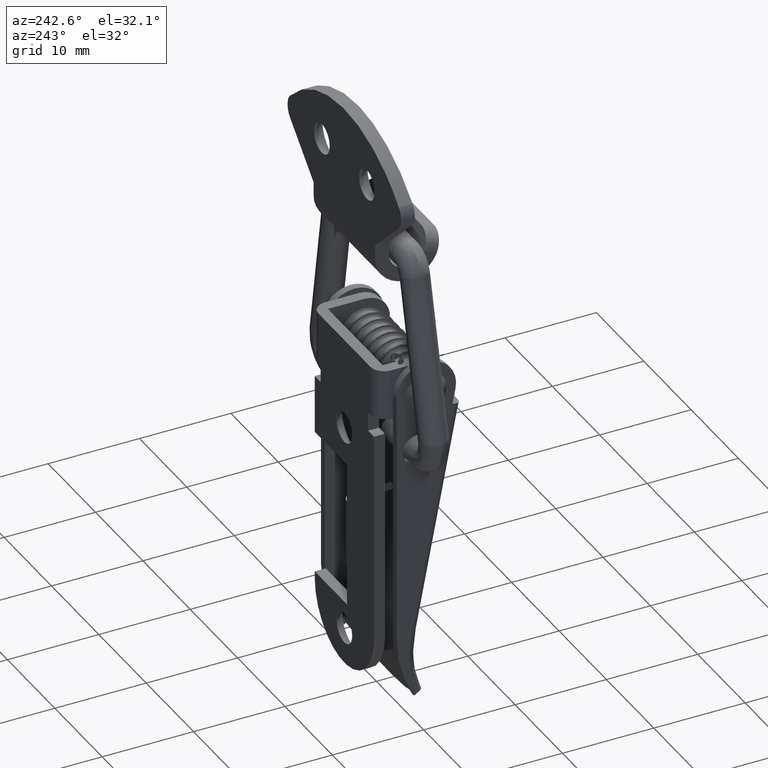
[diagram: clean part render]
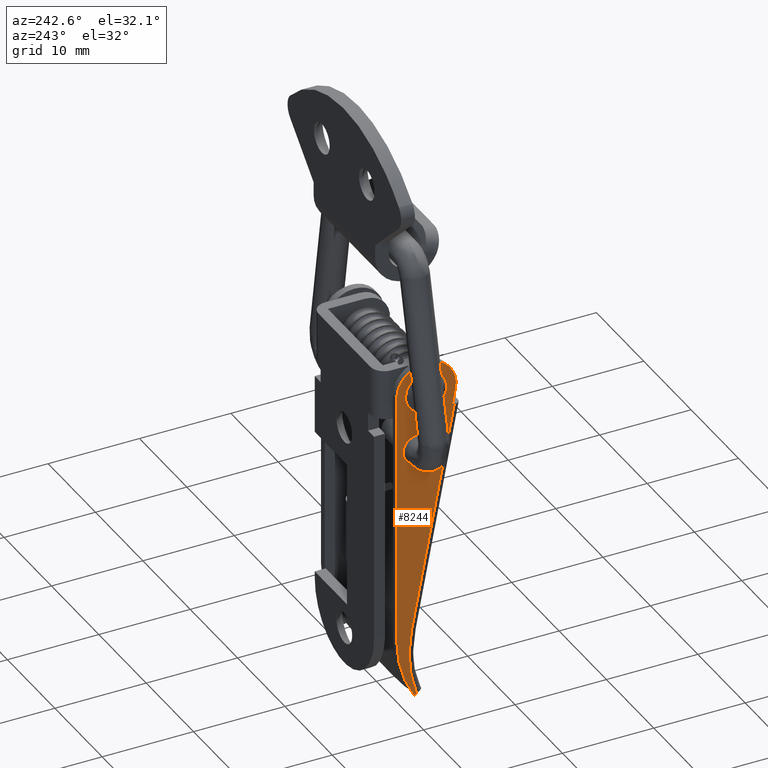
[diagram: same view with one face highlighted and labeled with its STEP entity id]
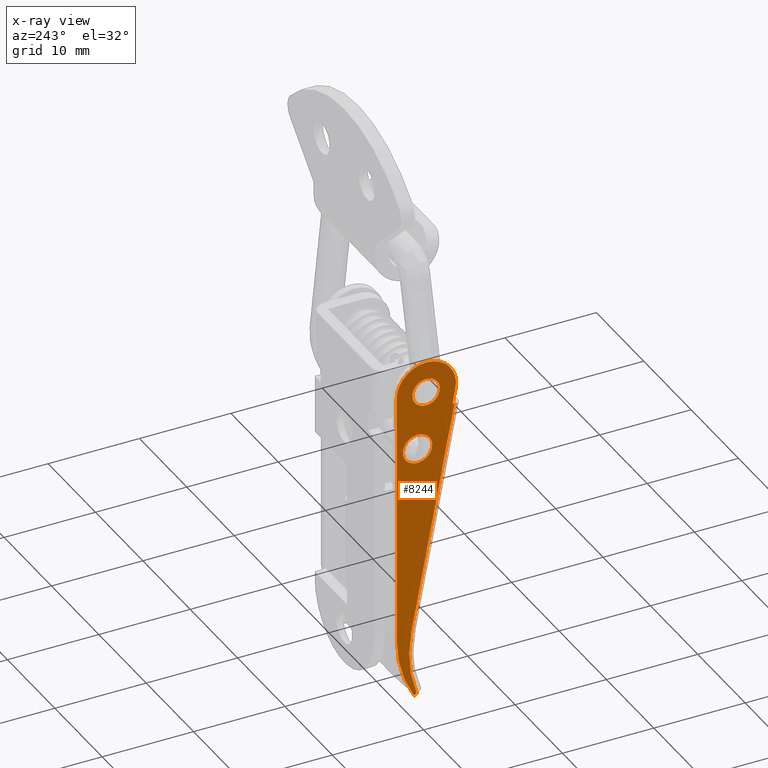
[diagram: x-ray of the same camera — body ghosted, the highlighted face saturated]
A machine part, auxiliary view. The second image highlights one B-rep face of the part: STEP entity #8244.
The next image is the same camera in x-ray: the body ghosted, the highlighted face saturated — about 0% of this face is hidden behind the body in this view.
In plain terms, the highlighted face is a freeform B-spline surface patch.
Its self-contained STEP definition (entity closure, byte-faithful):
#6886=CARTESIAN_POINT('',(-8.000000000000146,0.197202197609388,-15.492572809684891));
#6887=VERTEX_POINT('',#6886);
#6893=CARTESIAN_POINT('',(-8.000000000000119,-1.300000000000011,-16.901000000000000));
#6894=VERTEX_POINT('',#6893);
#6895=CARTESIAN_POINT('',(-8.000000000000119,-1.300000000000011,-16.901000000000000));
#6896=CARTESIAN_POINT('',(-8.000000000000119,0.111059099997269,-16.901000000000007));
#6897=CARTESIAN_POINT('',(-8.000000000000119,0.197202197609388,-15.492572809684884));
#6905=(BOUNDED_CURVE()B_SPLINE_CURVE(2,(#6895,#6896,#6897),.UNSPECIFIED.,.F.,.U.)B_SPLINE_CURVE_WITH_KNOTS((3,3),(0.500000000000000,0.739332962197875),.UNSPECIFIED.)CURVE()GEOMETRIC_REPRESENTATION_ITEM()RATIONAL_B_SPLINE_CURVE((1.0,0.719603993334824,0.976072041578701))REPRESENTATION_ITEM(''));
#6906=EDGE_CURVE('',#6894,#6887,#6905,.T.);
#6908=CARTESIAN_POINT('',(-8.000000000000146,-2.797202197609411,-15.309427190315111));
#6909=VERTEX_POINT('',#6908);
#6910=CARTESIAN_POINT('',(-8.000000000000119,-2.797202197609412,-15.309427190315114));
#6911=CARTESIAN_POINT('',(-8.000000000000119,-2.800000000000011,-15.355170854860276));
#6912=CARTESIAN_POINT('',(-8.000000000000119,-2.800000000000011,-15.401000000000000));
#6913=CARTESIAN_POINT('',(-8.000000000000119,-2.800000000000011,-16.901000000000000));
#6914=CARTESIAN_POINT('',(-8.000000000000119,-1.300000000000011,-16.901000000000000));
#6922=(BOUNDED_CURVE()B_SPLINE_CURVE(2,(#6910,#6911,#6912,#6913,#6914),.UNSPECIFIED.,.F.,.U.)B_SPLINE_CURVE_WITH_KNOTS((3,2,3),(0.239332962197875,0.250000000000000,0.500000000000000),.UNSPECIFIED.)CURVE()GEOMETRIC_REPRESENTATION_ITEM()RATIONAL_B_SPLINE_CURVE((0.976072041578701,0.987502787851723,1.0,0.707106781186548,1.0))REPRESENTATION_ITEM(''));
#6923=EDGE_CURVE('',#6909,#6894,#6922,.T.);
#6967=CARTESIAN_POINT('',(-8.000000000000119,-1.300000000000011,-13.901000000000000));
#6968=VERTEX_POINT('',#6967);
#6969=CARTESIAN_POINT('',(-8.000000000000119,-1.300000000000011,-13.901000000000000));
#6970=CARTESIAN_POINT('',(-8.000000000000119,-2.711059099997292,-13.900999999999998));
#6971=CARTESIAN_POINT('',(-8.000000000000119,-2.797202197609411,-15.309427190315109));
#6979=(BOUNDED_CURVE()B_SPLINE_CURVE(2,(#6969,#6970,#6971),.UNSPECIFIED.,.F.,.U.)B_SPLINE_CURVE_WITH_KNOTS((3,3),(0.0,0.239332962197875),.UNSPECIFIED.)CURVE()GEOMETRIC_REPRESENTATION_ITEM()RATIONAL_B_SPLINE_CURVE((1.0,0.719603993334824,0.976072041578701))REPRESENTATION_ITEM(''));
#6980=EDGE_CURVE('',#6968,#6909,#6979,.T.);
#6982=CARTESIAN_POINT('',(-8.000000000000119,0.197202197609388,-15.492572809684889));
#6983=CARTESIAN_POINT('',(-8.000000000000119,0.199999999999989,-15.446829145139723));
#6984=CARTESIAN_POINT('',(-8.000000000000119,0.199999999999989,-15.401000000000000));
#6985=CARTESIAN_POINT('',(-8.000000000000119,0.199999999999989,-13.900999999999996));
#6986=CARTESIAN_POINT('',(-8.000000000000119,-1.300000000000011,-13.901000000000000));
#6994=(BOUNDED_CURVE()B_SPLINE_CURVE(2,(#6982,#6983,#6984,#6985,#6986),.UNSPECIFIED.,.F.,.U.)B_SPLINE_CURVE_WITH_KNOTS((3,2,3),(0.739332962197875,0.750000000000000,1.0),.UNSPECIFIED.)CURVE()GEOMETRIC_REPRESENTATION_ITEM()RATIONAL_B_SPLINE_CURVE((0.976072041578702,0.987502787851723,1.0,0.707106781186548,1.0))REPRESENTATION_ITEM(''));
#6995=EDGE_CURVE('',#6887,#6968,#6994,.T.);
#7250=CARTESIAN_POINT('',(-8.000000000000119,1.229015677452927,-21.733677663616529));
#7251=VERTEX_POINT('',#7250);
#7257=CARTESIAN_POINT('',(-8.000000000000119,-0.367999999999995,-23.236000000000001));
#7258=VERTEX_POINT('',#7257);
#7259=CARTESIAN_POINT('',(-8.000000000000119,-0.367999999999995,-23.236000000000001));
#7260=CARTESIAN_POINT('',(-8.000000000000119,1.137129706708475,-23.236000000000004));
#7261=CARTESIAN_POINT('',(-8.000000000000119,1.229015677452927,-21.733677663616529));
#7269=(BOUNDED_CURVE()B_SPLINE_CURVE(2,(#7259,#7260,#7261),.UNSPECIFIED.,.F.,.U.)B_SPLINE_CURVE_WITH_KNOTS((3,3),(0.500000000000000,0.739332962202990),.UNSPECIFIED.)CURVE()GEOMETRIC_REPRESENTATION_ITEM()RATIONAL_B_SPLINE_CURVE((1.0,0.719603993328831,0.976072041589664))REPRESENTATION_ITEM(''));
#7270=EDGE_CURVE('',#7258,#7251,#7269,.T.);
#7272=CARTESIAN_POINT('',(-8.000000000000119,-1.965015677452916,-21.538322336383469));
#7273=VERTEX_POINT('',#7272);
#7274=CARTESIAN_POINT('',(-8.000000000000119,-1.965015677452916,-21.538322336383469));
#7275=CARTESIAN_POINT('',(-8.000000000000119,-1.967999999999995,-21.587115578541372));
#7276=CARTESIAN_POINT('',(-8.000000000000119,-1.967999999999994,-21.635999999999999));
#7277=CARTESIAN_POINT('',(-8.000000000000119,-1.967999999999995,-23.236000000000001));
#7278=CARTESIAN_POINT('',(-8.000000000000119,-0.367999999999995,-23.236000000000001));
#7286=(BOUNDED_CURVE()B_SPLINE_CURVE(2,(#7274,#7275,#7276,#7277,#7278),.UNSPECIFIED.,.F.,.U.)B_SPLINE_CURVE_WITH_KNOTS((3,2,3),(0.239332962202991,0.250000000000000,0.500000000000000),.UNSPECIFIED.)CURVE()GEOMETRIC_REPRESENTATION_ITEM()RATIONAL_B_SPLINE_CURVE((0.976072041589665,0.987502787857717,1.0,0.707106781186548,1.0))REPRESENTATION_ITEM(''));
#7287=EDGE_CURVE('',#7273,#7258,#7286,.T.);
#7331=CARTESIAN_POINT('',(-8.000000000000119,-0.367999999999995,-20.036000000000001));
#7332=VERTEX_POINT('',#7331);
#7333=CARTESIAN_POINT('',(-8.000000000000119,-0.367999999999995,-20.036000000000001));
#7334=CARTESIAN_POINT('',(-8.000000000000119,-1.873129706708463,-20.035999999999991));
#7335=CARTESIAN_POINT('',(-8.000000000000121,-1.965015677452916,-21.538322336383469));
#7343=(BOUNDED_CURVE()B_SPLINE_CURVE(2,(#7333,#7334,#7335),.UNSPECIFIED.,.F.,.U.)B_SPLINE_CURVE_WITH_KNOTS((3,3),(0.0,0.239332962202990),.UNSPECIFIED.)CURVE()GEOMETRIC_REPRESENTATION_ITEM()RATIONAL_B_SPLINE_CURVE((1.0,0.719603993328831,0.976072041589664))REPRESENTATION_ITEM(''));
#7344=EDGE_CURVE('',#7332,#7273,#7343,.T.);
#7346=CARTESIAN_POINT('',(-8.000000000000119,1.229015677452927,-21.733677663616529));
#7347=CARTESIAN_POINT('',(-8.000000000000119,1.232000000000006,-21.684884421458623));
#7348=CARTESIAN_POINT('',(-8.000000000000119,1.232000000000006,-21.635999999999999));
#7349=CARTESIAN_POINT('',(-8.000000000000119,1.232000000000005,-20.036000000000005));
#7350=CARTESIAN_POINT('',(-8.000000000000119,-0.367999999999995,-20.036000000000001));
#7358=(BOUNDED_CURVE()B_SPLINE_CURVE(2,(#7346,#7347,#7348,#7349,#7350),.UNSPECIFIED.,.F.,.U.)B_SPLINE_CURVE_WITH_KNOTS((3,2,3),(0.739332962202990,0.750000000000000,1.0),.UNSPECIFIED.)CURVE()GEOMETRIC_REPRESENTATION_ITEM()RATIONAL_B_SPLINE_CURVE((0.976072041589664,0.987502787857716,1.0,0.707106781186548,1.0))REPRESENTATION_ITEM(''));
#7359=EDGE_CURVE('',#7251,#7332,#7358,.T.);
#7706=CARTESIAN_POINT('',(-8.000000000000119,-4.193000000000098,-17.579999999999998));
#7707=VERTEX_POINT('',#7706);
#7722=CARTESIAN_POINT('',(-8.000000000000119,-4.520999999999999,-15.861000000000001));
#7723=VERTEX_POINT('',#7722);
#7729=CARTESIAN_POINT('',(-8.000000000000119,-4.520999999999999,-15.861000000000001));
#7730=CARTESIAN_POINT('',(-8.000000000000119,-4.193000000000098,-17.579999999999998));
#7731=QUASI_UNIFORM_CURVE('',1,(#7729,#7730),.UNSPECIFIED.,.F.,.U.);
#7732=EDGE_CURVE('',#7723,#7707,#7731,.T.);
#7781=CARTESIAN_POINT('',(-8.000000000000119,1.921999588120811,-15.254636219585500));
#7782=VERTEX_POINT('',#7781);
#7788=CARTESIAN_POINT('',(-8.000000000000119,1.921999588120811,-15.254636219585500));
#7789=CARTESIAN_POINT('',(-8.000000000000101,1.922149181566138,-15.085470989578310));
#7790=CARTESIAN_POINT('',(-8.000000000000162,1.889463436926203,-14.662512297647700));
#7791=CARTESIAN_POINT('',(-8.000000000000066,1.732921755220227,-14.102012551390439));
#7792=CARTESIAN_POINT('',(-8.000000000000163,1.431078996856606,-13.494414561560241));
#7793=CARTESIAN_POINT('',(-8.000000000000167,1.075763313562508,-13.032965832023701));
#7794=CARTESIAN_POINT('',(-8.000000000000078,0.597311039356358,-12.613926158113539));
#7795=CARTESIAN_POINT('',(-8.000000000000107,0.054034960717628,-12.280561973889350));
#7796=CARTESIAN_POINT('',(-8.000000000000117,-0.564344641860191,-12.069432923768909));
#7797=CARTESIAN_POINT('',(-8.000000000000210,-1.265675455830321,-11.979617626486471));
#7798=CARTESIAN_POINT('',(-8.000000000000133,-1.860645084645674,-12.023904279254470));
#7799=CARTESIAN_POINT('',(-8.000000000000169,-2.419202787248113,-12.178251464996629));
#7800=CARTESIAN_POINT('',(-8.000000000000075,-2.885294880188193,-12.382288942021059));
#7801=CARTESIAN_POINT('',(-8.000000000000147,-3.431735175817660,-12.736469133875570));
#7802=CARTESIAN_POINT('',(-8.000000000000114,-3.896208884194152,-13.217609250568350));
#7803=CARTESIAN_POINT('',(-8.000000000000096,-4.260163047752571,-13.807222331705599));
#7804=CARTESIAN_POINT('',(-8.000000000000277,-4.506900822624520,-14.441279259231100));
#7805=CARTESIAN_POINT('',(-7.999999999999718,-4.605707793312008,-15.159580081946761));
#7806=CARTESIAN_POINT('',(-8.000000000000593,-4.560642260428574,-15.653300239889241));
#7807=CARTESIAN_POINT('',(-8.000000000000119,-4.520999999999999,-15.861000000000001));
#7808=B_SPLINE_CURVE_WITH_KNOTS('',3,(#7788,#7789,#7790,#7791,#7792,#7793,#7794,#7795,#7796,#7797,#7798,#7799,#7800,#7801,#7802,#7803,#7804,#7805,#7806,#7807),.UNSPECIFIED.,.F.,.U.,(4,1,1,1,1,1,1,1,1,1,1,1,1,1,1,1,1,4),(0.000000229338921,0.507503492291374,1.268771633218142,1.733987270435623,2.537558209078835,3.002768830046814,3.637106206759979,4.440677187906363,4.948198713485247,5.751765416539009,6.216998485562430,6.682198527850487,7.274281280428857,8.162407315081246,8.669927446419212,9.346616598699043,10.192488347848821,10.826846543033060),.UNSPECIFIED.);
#7809=EDGE_CURVE('',#7782,#7723,#7808,.T.);
#7827=CARTESIAN_POINT('',(-8.000000000000119,1.908000000000000,-43.063000000000002));
#7828=VERTEX_POINT('',#7827);
#7834=CARTESIAN_POINT('',(-8.000000000000119,1.908000000000000,-43.063000000000002));
#7835=CARTESIAN_POINT('',(-8.000000000000119,1.921999588120811,-15.254636219585500));
#7836=QUASI_UNIFORM_CURVE('',1,(#7834,#7835),.UNSPECIFIED.,.F.,.U.);
#7837=EDGE_CURVE('',#7828,#7782,#7836,.T.);
#8173=CARTESIAN_POINT('',(-8.000000000000171,-4.901387976376703,-10.113353932025760));
#8174=CARTESIAN_POINT('',(-8.000000000000171,2.246613502398198,-10.113353932025760));
#8175=CARTESIAN_POINT('',(-8.000000000000171,-4.901387976376703,-51.701057182777511));
#8176=CARTESIAN_POINT('',(-8.000000000000171,2.246613502398198,-51.701057182777511));
#8177=B_SPLINE_SURFACE_WITH_KNOTS('',1,1,((#8173,#8175),(#8174,#8176)),.UNSPECIFIED.,.F.,.F.,.U.,(2,2),(2,2),(0.0,7.148001478774901),(0.0,41.587703250751751),.UNSPECIFIED.);
#8178=CARTESIAN_POINT('',(-8.000000000000119,0.014782221497097,-49.812424790114100));
#8179=VERTEX_POINT('',#8178);
#8180=CARTESIAN_POINT('',(-8.000000000000119,0.014782221497106,-49.812424790114122));
#8181=CARTESIAN_POINT('',(-8.000000000000119,1.906167573403935,-46.702722770227105));
#8182=CARTESIAN_POINT('',(-8.000000000000119,1.907999999999990,-43.063000000000002));
#8190=(BOUNDED_CURVE()B_SPLINE_CURVE(2,(#8180,#8181,#8182),.UNSPECIFIED.,.F.,.U.)CURVE()GEOMETRIC_REPRESENTATION_ITEM()QUASI_UNIFORM_CURVE()RATIONAL_B_SPLINE_CURVE((1.0,0.962974614348254,1.0))REPRESENTATION_ITEM(''));
#8191=EDGE_CURVE('',#8179,#7828,#8190,.T.);
#8192=ORIENTED_EDGE('',*,*,#8191,.F.);
#8193=CARTESIAN_POINT('',(-8.000000000000210,-0.270581910854171,-49.654251528182201));
#8194=VERTEX_POINT('',#8193);
#8195=CARTESIAN_POINT('',(-8.000000000000119,0.014782221497097,-49.812424790114100));
#8196=CARTESIAN_POINT('',(-8.000000000000210,-0.270581910854171,-49.654251528182201));
#8197=QUASI_UNIFORM_CURVE('',1,(#8195,#8196),.UNSPECIFIED.,.F.,.U.);
#8198=EDGE_CURVE('',#8179,#8194,#8197,.T.);
#8199=ORIENTED_EDGE('',*,*,#8198,.T.);
#8200=CARTESIAN_POINT('',(-8.000000000000171,0.317894153549923,-42.355432692690052));
#8201=VERTEX_POINT('',#8200);
#8202=CARTESIAN_POINT('',(-8.000000000000171,-0.270581910854160,-49.654251528182201));
#8203=CARTESIAN_POINT('',(-8.000000000000171,1.027838245674863,-46.085805504347938));
#8204=CARTESIAN_POINT('',(-8.000000000000171,0.317894153549933,-42.355432692690052));
#8212=(BOUNDED_CURVE()B_SPLINE_CURVE(2,(#8202,#8203,#8204),.UNSPECIFIED.,.F.,.U.)CURVE()GEOMETRIC_REPRESENTATION_ITEM()QUASI_UNIFORM_CURVE()RATIONAL_B_SPLINE_CURVE((1.0,0.964165223225087,1.0))REPRESENTATION_ITEM(''));
#8213=EDGE_CURVE('',#8194,#8201,#8212,.T.);
#8214=ORIENTED_EDGE('',*,*,#8213,.T.);
#8215=CARTESIAN_POINT('',(-8.000000000000171,-4.390094177018004,-17.617494009259850));
#8216=VERTEX_POINT('',#8215);
#8217=CARTESIAN_POINT('',(-8.000000000000171,0.317894153549923,-42.355432692690052));
#8218=CARTESIAN_POINT('',(-8.000000000000171,-4.390094177018004,-17.617494009259850));
#8219=QUASI_UNIFORM_CURVE('',1,(#8217,#8218),.UNSPECIFIED.,.F.,.U.);
#8220=EDGE_CURVE('',#8201,#8216,#8219,.T.);
#8221=ORIENTED_EDGE('',*,*,#8220,.T.);
#8222=CARTESIAN_POINT('',(-8.000000000000119,-4.193000000000098,-17.579999999999998));
#8223=CARTESIAN_POINT('',(-8.000000000000171,-4.390094177018004,-17.617494009259850));
#8224=QUASI_UNIFORM_CURVE('',1,(#8222,#8223),.UNSPECIFIED.,.F.,.U.);
#8225=EDGE_CURVE('',#7707,#8216,#8224,.T.);
#8226=ORIENTED_EDGE('',*,*,#8225,.F.);
#8227=ORIENTED_EDGE('',*,*,#7732,.F.);
#8228=ORIENTED_EDGE('',*,*,#7809,.F.);
#8229=ORIENTED_EDGE('',*,*,#7837,.F.);
#8230=EDGE_LOOP('',(#8192,#8199,#8214,#8221,#8226,#8227,#8228,#8229));
#8231=FACE_OUTER_BOUND('',#8230,.T.);
#8232=ORIENTED_EDGE('',*,*,#7270,.T.);
#8233=ORIENTED_EDGE('',*,*,#7359,.T.);
#8234=ORIENTED_EDGE('',*,*,#7344,.T.);
#8235=ORIENTED_EDGE('',*,*,#7287,.T.);
#8236=EDGE_LOOP('',(#8232,#8233,#8234,#8235));
#8237=FACE_BOUND('',#8236,.T.);
#8238=ORIENTED_EDGE('',*,*,#6906,.T.);
#8239=ORIENTED_EDGE('',*,*,#6995,.T.);
#8240=ORIENTED_EDGE('',*,*,#6980,.T.);
#8241=ORIENTED_EDGE('',*,*,#6923,.T.);
#8242=EDGE_LOOP('',(#8238,#8239,#8240,#8241));
#8243=FACE_BOUND('',#8242,.T.);
#8244=ADVANCED_FACE('',(#8231,#8237,#8243),#8177,.T.);